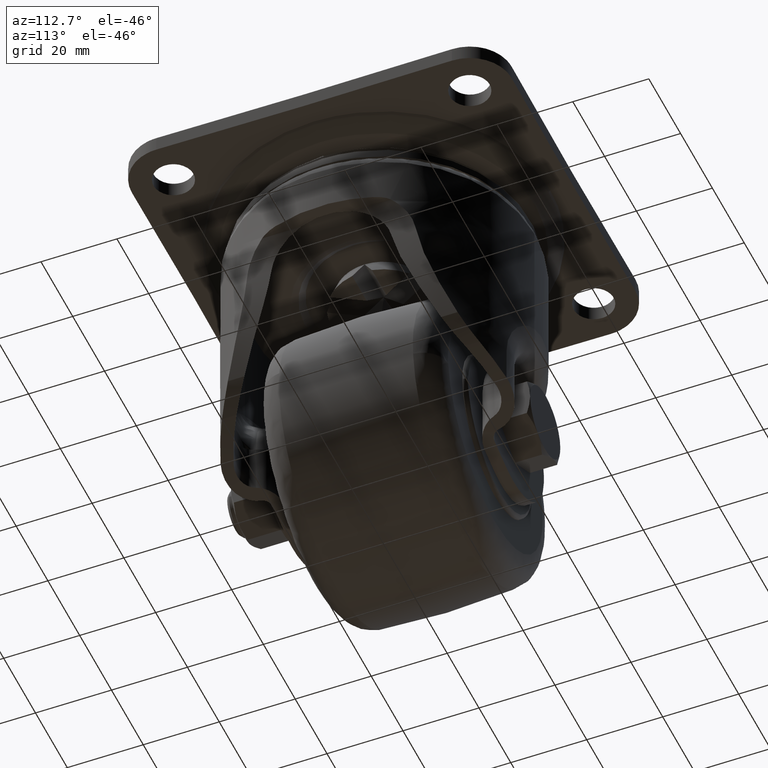
[diagram: clean part render]
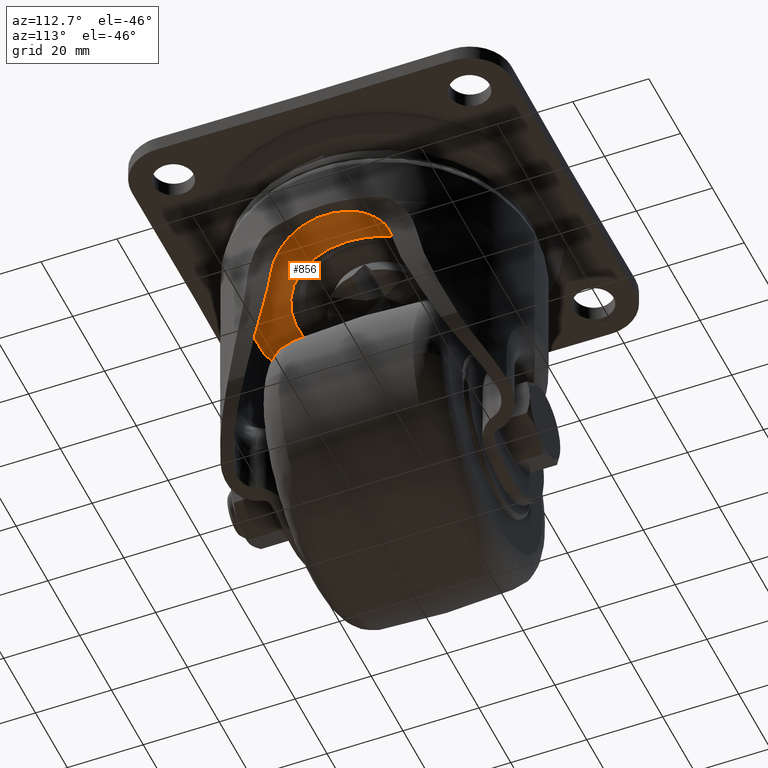
[diagram: same view with one face highlighted and labeled with its STEP entity id]
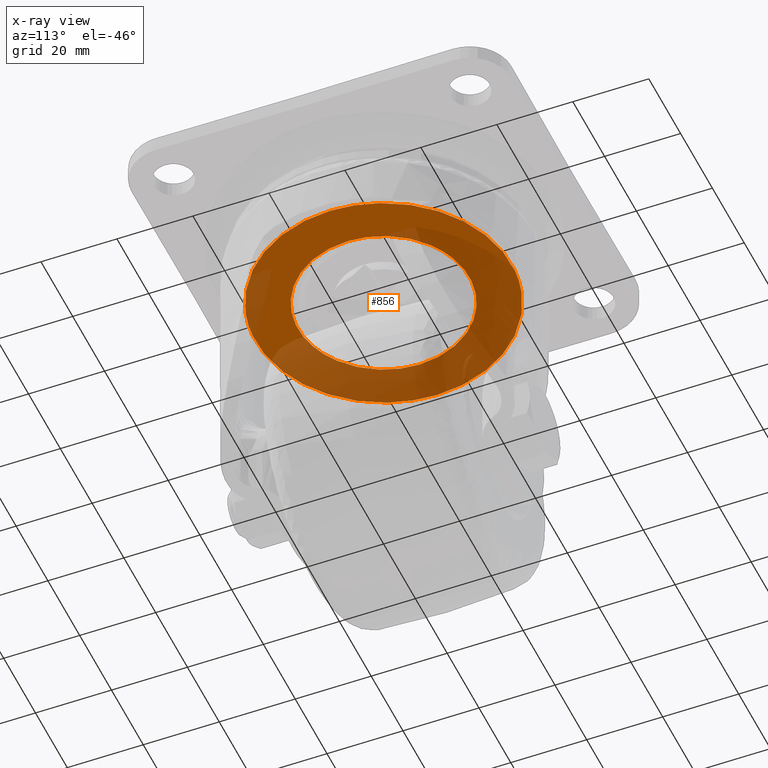
[diagram: x-ray of the same camera — body ghosted, the highlighted face saturated]
A machine part, auxiliary view. The second image highlights one B-rep face of the part: STEP entity #856.
The next image is the same camera in x-ray: the body ghosted, the highlighted face saturated — about 60% of this face is hidden behind the body in this view.
In plain terms, the highlighted face is a freeform B-spline surface patch.
Its self-contained STEP definition (entity closure, byte-faithful):
#646=CARTESIAN_POINT('',(-13.498462945971159,-18.096390815558681,-25.399955000000102));
#647=VERTEX_POINT('',#646);
#648=CARTESIAN_POINT('',(-22.576267682283451,0.0,-25.399955000000102));
#649=VERTEX_POINT('',#648);
#650=CARTESIAN_POINT('',(-13.498462945971152,-18.096390815558685,-25.399955000000091));
#651=CARTESIAN_POINT('',(-22.576267682224373,-11.325073147314475,-25.399955000000102));
#652=CARTESIAN_POINT('',(-22.576267682283451,0.0,-25.399955000000102));
#660=(BOUNDED_CURVE()B_SPLINE_CURVE(2,(#650,#651,#652),.UNSPECIFIED.,.F.,.U.)B_SPLINE_CURVE_WITH_KNOTS((3,3),(0.853156604495218,1.0),.UNSPECIFIED.)CURVE()GEOMETRIC_REPRESENTATION_ITEM()RATIONAL_B_SPLINE_CURVE((0.858025367928838,0.827962260916430,1.0))REPRESENTATION_ITEM(''));
#661=EDGE_CURVE('',#647,#649,#660,.T.);
#663=CARTESIAN_POINT('',(13.498462945971159,18.096390815558681,-25.399955000000102));
#664=VERTEX_POINT('',#663);
#665=CARTESIAN_POINT('',(-22.576267682283451,0.0,-25.399955000000102));
#666=CARTESIAN_POINT('',(-22.576267682313091,22.576267682243728,-25.399955000000091));
#667=CARTESIAN_POINT('',(-8.871778E-011,22.576267682164520,-25.399955000000102));
#668=CARTESIAN_POINT('',(7.492623399104151,22.576267682138234,-25.399955000000102));
#669=CARTESIAN_POINT('',(13.498462945971164,18.096390815558674,-25.399955000000091));
#677=(BOUNDED_CURVE()B_SPLINE_CURVE(2,(#665,#666,#667,#668,#669),.UNSPECIFIED.,.F.,.U.)B_SPLINE_CURVE_WITH_KNOTS((3,2,3),(0.0,0.250000000000000,0.353156604495218),.UNSPECIFIED.)CURVE()GEOMETRIC_REPRESENTATION_ITEM()RATIONAL_B_SPLINE_CURVE((1.0,0.707106781186548,1.0,0.879144520270118,0.858025367928838))REPRESENTATION_ITEM(''));
#678=EDGE_CURVE('',#649,#664,#677,.T.);
#741=CARTESIAN_POINT('',(22.576267682283451,0.0,-25.399955000000102));
#742=VERTEX_POINT('',#741);
#743=CARTESIAN_POINT('',(22.576267682283451,0.0,-25.399955000000102));
#744=CARTESIAN_POINT('',(22.576267682313091,-22.576267682243728,-25.399955000000091));
#745=CARTESIAN_POINT('',(8.872178E-011,-22.576267682164520,-25.399955000000102));
#746=CARTESIAN_POINT('',(-7.492623399104146,-22.576267682138234,-25.399955000000102));
#747=CARTESIAN_POINT('',(-13.498462945971152,-18.096390815558685,-25.399955000000091));
#755=(BOUNDED_CURVE()B_SPLINE_CURVE(2,(#743,#744,#745,#746,#747),.UNSPECIFIED.,.F.,.U.)B_SPLINE_CURVE_WITH_KNOTS((3,2,3),(0.500000000000000,0.750000000000000,0.853156604495218),.UNSPECIFIED.)CURVE()GEOMETRIC_REPRESENTATION_ITEM()RATIONAL_B_SPLINE_CURVE((1.0,0.707106781186548,1.0,0.879144520270118,0.858025367928838))REPRESENTATION_ITEM(''));
#756=EDGE_CURVE('',#742,#647,#755,.T.);
#763=CARTESIAN_POINT('',(13.498462945971164,18.096390815558674,-25.399955000000091));
#764=CARTESIAN_POINT('',(22.576267682224373,11.325073147314473,-25.399955000000102));
#765=CARTESIAN_POINT('',(22.576267682283451,0.0,-25.399955000000102));
#773=(BOUNDED_CURVE()B_SPLINE_CURVE(2,(#763,#764,#765),.UNSPECIFIED.,.F.,.U.)B_SPLINE_CURVE_WITH_KNOTS((3,3),(0.353156604495218,0.500000000000000),.UNSPECIFIED.)CURVE()GEOMETRIC_REPRESENTATION_ITEM()RATIONAL_B_SPLINE_CURVE((0.858025367928838,0.827962260916430,1.0))REPRESENTATION_ITEM(''));
#774=EDGE_CURVE('',#664,#742,#773,.T.);
#779=CARTESIAN_POINT('',(37.066685964265638,-37.065856645964637,-25.399955000000102));
#780=CARTESIAN_POINT('',(-37.066687772077252,-37.065856645964637,-25.399955000000102));
#781=CARTESIAN_POINT('',(37.066685964265638,37.065855440756913,-25.399955000000102));
#782=CARTESIAN_POINT('',(-37.066687772077252,37.065855440756913,-25.399955000000102));
#783=B_SPLINE_SURFACE_WITH_KNOTS('',1,1,((#779,#781),(#780,#782)),.UNSPECIFIED.,.F.,.F.,.U.,(2,2),(2,2),(0.0,74.133373736342890),(0.0,74.131712086721564),.UNSPECIFIED.);
#784=CARTESIAN_POINT('',(-33.700051000000101,0.0,-25.399955000000102));
#785=VERTEX_POINT('',#784);
#786=CARTESIAN_POINT('',(-2.057327685467527,33.637194297341303,-25.399955000000400));
#787=VERTEX_POINT('',#786);
#788=CARTESIAN_POINT('',(-33.700051000000101,0.0,-25.399955000000102));
#789=CARTESIAN_POINT('',(-33.700051000000052,31.701853015809675,-25.399955000000251));
#790=CARTESIAN_POINT('',(-2.057327685467528,33.637194297341303,-25.399955000000407));
#798=(BOUNDED_CURVE()B_SPLINE_CURVE(2,(#788,#789,#790),.UNSPECIFIED.,.F.,.U.)B_SPLINE_CURVE_WITH_KNOTS((3,3),(0.0,0.239333019746974),.UNSPECIFIED.)CURVE()GEOMETRIC_REPRESENTATION_ITEM()RATIONAL_B_SPLINE_CURVE((1.0,0.719603925911861,0.976072164917406))REPRESENTATION_ITEM(''));
#799=EDGE_CURVE('',#785,#787,#798,.T.);
#800=ORIENTED_EDGE('',*,*,#799,.T.);
#801=CARTESIAN_POINT('',(33.700051000000101,0.0,-25.399955000000102));
#802=VERTEX_POINT('',#801);
#803=CARTESIAN_POINT('',(-2.057327685467528,33.637194297341303,-25.399955000000407));
#804=CARTESIAN_POINT('',(-1.029624060470728,33.700050999998261,-25.399955000000400));
#805=CARTESIAN_POINT('',(1.129019E-013,33.700050999998290,-25.399955000000389));
#806=CARTESIAN_POINT('',(33.700051000000158,33.700050999999220,-25.399955000000251));
#807=CARTESIAN_POINT('',(33.700051000000101,0.0,-25.399955000000102));
#815=(BOUNDED_CURVE()B_SPLINE_CURVE(2,(#803,#804,#805,#806,#807),.UNSPECIFIED.,.F.,.U.)B_SPLINE_CURVE_WITH_KNOTS((3,2,3),(0.239333019746974,0.250000000000000,0.500000000000000),.UNSPECIFIED.)CURVE()GEOMETRIC_REPRESENTATION_ITEM()RATIONAL_B_SPLINE_CURVE((0.976072164917406,0.987502855274686,1.0,0.707106781186547,1.0))REPRESENTATION_ITEM(''));
#816=EDGE_CURVE('',#787,#802,#815,.T.);
#817=ORIENTED_EDGE('',*,*,#816,.T.);
#818=CARTESIAN_POINT('',(2.057327685467531,-33.637194297341303,-25.399955000000400));
#819=VERTEX_POINT('',#818);
#820=CARTESIAN_POINT('',(33.700051000000101,0.0,-25.399955000000102));
#821=CARTESIAN_POINT('',(33.700051000000052,-31.701853015809665,-25.399955000000251));
#822=CARTESIAN_POINT('',(2.057327685467531,-33.637194297341303,-25.399955000000400));
#830=(BOUNDED_CURVE()B_SPLINE_CURVE(2,(#820,#821,#822),.UNSPECIFIED.,.F.,.U.)B_SPLINE_CURVE_WITH_KNOTS((3,3),(0.500000000000000,0.739333019746974),.UNSPECIFIED.)CURVE()GEOMETRIC_REPRESENTATION_ITEM()RATIONAL_B_SPLINE_CURVE((1.0,0.719603925911861,0.976072164917406))REPRESENTATION_ITEM(''));
#831=EDGE_CURVE('',#802,#819,#830,.T.);
#832=ORIENTED_EDGE('',*,*,#831,.T.);
#833=CARTESIAN_POINT('',(2.057327685467531,-33.637194297341303,-25.399955000000400));
#834=CARTESIAN_POINT('',(1.029624060470729,-33.700050999998254,-25.399955000000389));
#835=CARTESIAN_POINT('',(-1.146256E-013,-33.700050999998282,-25.399955000000389));
#836=CARTESIAN_POINT('',(-33.700051000000158,-33.700050999999220,-25.399955000000237));
#837=CARTESIAN_POINT('',(-33.700051000000101,0.0,-25.399955000000102));
#845=(BOUNDED_CURVE()B_SPLINE_CURVE(2,(#833,#834,#835,#836,#837),.UNSPECIFIED.,.F.,.U.)B_SPLINE_CURVE_WITH_KNOTS((3,2,3),(0.739333019746974,0.750000000000000,1.0),.UNSPECIFIED.)CURVE()GEOMETRIC_REPRESENTATION_ITEM()RATIONAL_B_SPLINE_CURVE((0.976072164917406,0.987502855274686,1.0,0.707106781186547,1.0))REPRESENTATION_ITEM(''));
#846=EDGE_CURVE('',#819,#785,#845,.T.);
#847=ORIENTED_EDGE('',*,*,#846,.T.);
#848=EDGE_LOOP('',(#800,#817,#832,#847));
#849=FACE_OUTER_BOUND('',#848,.T.);
#850=ORIENTED_EDGE('',*,*,#678,.F.);
#851=ORIENTED_EDGE('',*,*,#661,.F.);
#852=ORIENTED_EDGE('',*,*,#756,.F.);
#853=ORIENTED_EDGE('',*,*,#774,.F.);
#854=EDGE_LOOP('',(#850,#851,#852,#853));
#855=FACE_BOUND('',#854,.T.);
#856=ADVANCED_FACE('',(#849,#855),#783,.T.);